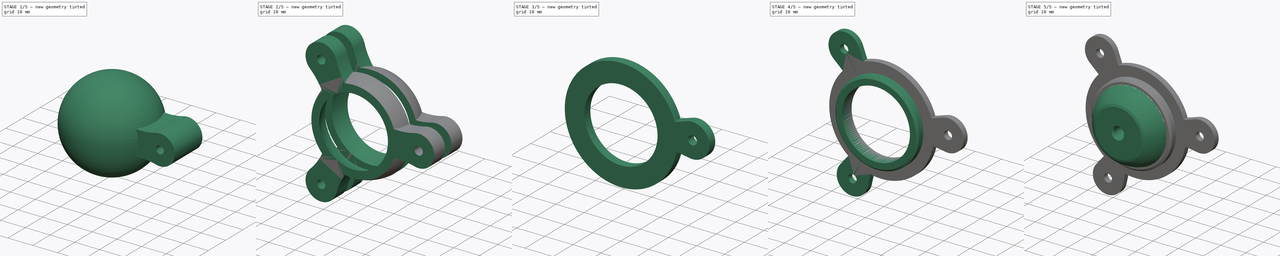
[diagram: build sequence overview — one tinted view per stage of 5, left to right]
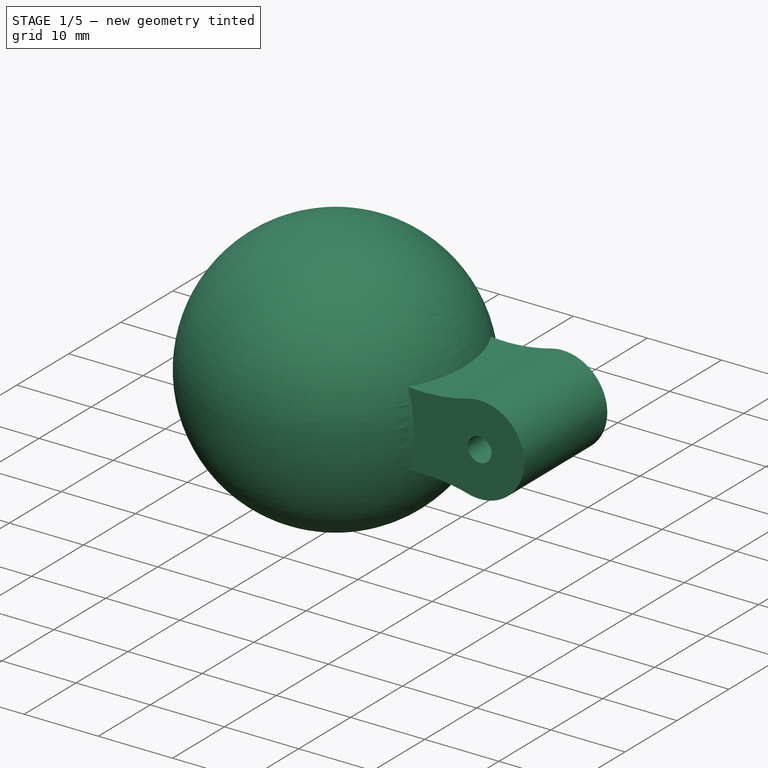
[diagram: stage 1 of 5 — iso view after this stage's code; geometry added in this stage tinted green]
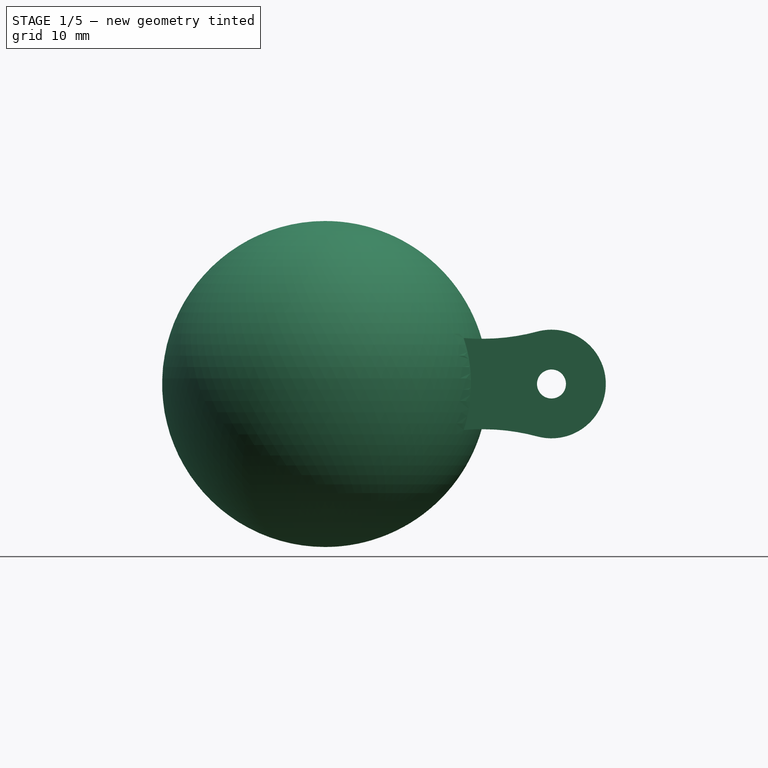
[diagram: stage 1 of 5 — front view after this stage's code; geometry added in this stage tinted green]
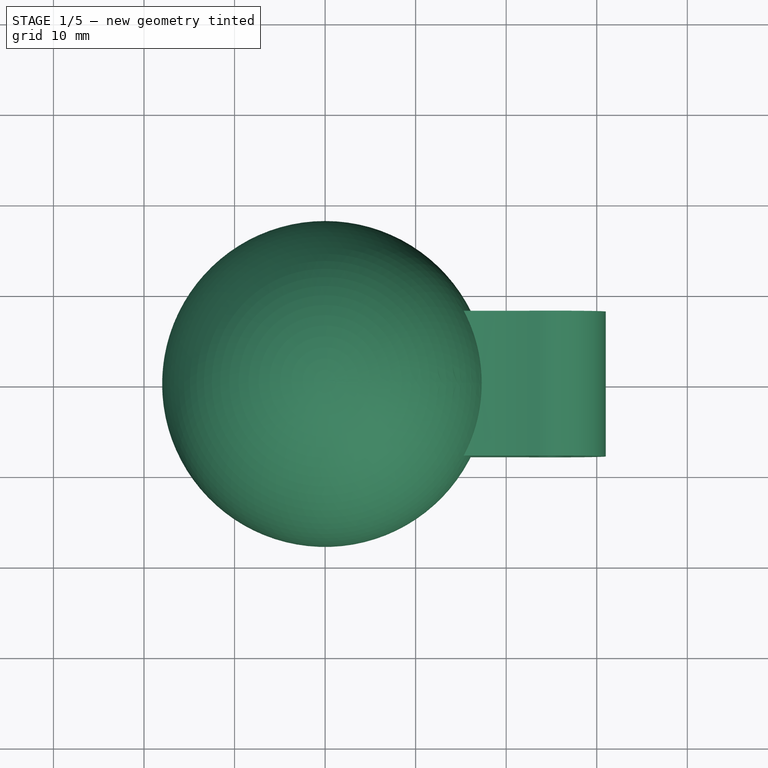
[diagram: stage 1 of 5 — top view after this stage's code; geometry added in this stage tinted green]
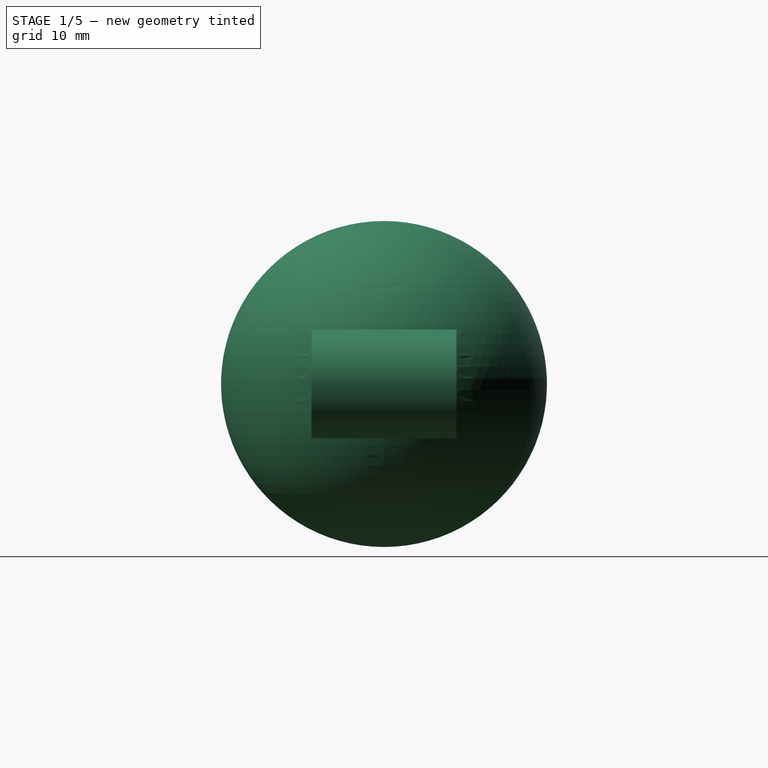
[diagram: stage 1 of 5 — right view after this stage's code; geometry added in this stage tinted green]
FCSTD DOCUMENT  (FreeCAD 1.0R39109 (Git))
Label: back panel sphere
License: All rights reserved
objects: Sketcher::SketchObject×6, PartDesign::Chamfer×4, PartDesign::Pocket×3, PartDesign::Pad×3, PartDesign::Body×3, PartDesign::AdditiveSphere×2, PartDesign::PolarPattern×2, PartDesign::SubShapeBinder×2, PartDesign::SubtractiveSphere×1, PartDesign::Hole×1
note: 63 computed .brp shape members not serialized (recipe doc carries the construction recipe); baked Part::Feature solids carry a one-line shape summary decoded from their .brp

FEATURE [PartDesign::AdditiveSphere] Sphere
  Angle1 = -90
  Angle2 = 90
  Angle3 = 360
  AttacherType = Attacher::AttachEngine3D
  AttachmentSupport = -> [XY_Plane]
  MapMode = 5
  Radius = 15
  Refine = true
  Suppressed = false
FEATURE [Sketcher::SketchObject] Sketch002
  ArcFitTolerance = 1e-06
  AttachmentSupport = -> [YZ_Plane001]
  FullyConstrained = true
  MakeInternals = false
  MapMode = 5
  Placement = pos=(0,0,0) rot=(0.57735,0.57735,0.57735;2.0944rad)
  sketch-geometry (12):
    g0: LineSegment StartX=7.75 StartY=40 StartZ=0 EndX=7.75 EndY=-40 EndZ=0
    g1: LineSegment StartX=7.75 StartY=-40 StartZ=0 EndX=22.75 EndY=-40 EndZ=0
    g2: LineSegment StartX=22.75 StartY=-40 StartZ=0 EndX=22.75 EndY=40 EndZ=0
    g3: LineSegment StartX=22.75 StartY=40 StartZ=0 EndX=7.75 EndY=40 EndZ=0
    g4: LineSegment StartX=-22.75 StartY=40 StartZ=0 EndX=-22.75 EndY=-40 EndZ=0
    g5: LineSegment StartX=-22.75 StartY=-40 StartZ=0 EndX=-7.75 EndY=-40 EndZ=0
    g6: LineSegment StartX=-7.75 StartY=-40 StartZ=0 EndX=-7.75 EndY=40 EndZ=0
    g7: LineSegment StartX=-7.75 StartY=40 StartZ=0 EndX=-22.75 EndY=40 EndZ=0
    g8: LineSegment StartX=-1.75 StartY=40 StartZ=0 EndX=-1.75 EndY=-40 EndZ=0
    g9: LineSegment StartX=-1.75 StartY=-40 StartZ=0 EndX=1.75 EndY=-40 EndZ=0
    g10: LineSegment StartX=1.75 StartY=-40 StartZ=0 EndX=1.75 EndY=40 EndZ=0
    g11: LineSegment StartX=1.75 StartY=40 StartZ=0 EndX=-1.75 EndY=40 EndZ=0
  constraints (33):
    c: Coincident(g0,g1)
    c: Coincident(g1,g2)
    c: Coincident(g2,g3)
    c: Coincident(g3,g0)
    c: Vertical(g0)
    c: Horizontal(g1)
    c: Horizontal(g3)
    c: Coincident(g4,g5)
    c: Coincident(g5,g6)
    c: Coincident(g6,g7)
    c: Coincident(g7,g4)
    c: Vertical(g4)
    c: Vertical(g6)
    c: Horizontal(g5)
    c: Horizontal(g7)
    c: Horizontal(g6,g0)
    c: Equal(g7,g3)
    c: Symmetric(g5,g0,g-2)
    c: DistanceX(g1,g1) = 15
    c: Symmetric(g1,g2,g-1)
    c: DistanceY(g2,g2) = 80
    c: Coincident(g8,g9)
    c: Coincident(g9,g10)
    c: Coincident(g10,g11)
    c: Coincident(g11,g8)
    c: Vertical(g8)
    c: Vertical(g10)
    c: Horizontal(g9)
    c: Horizontal(g10,g0)
    c: Equal(g10,g0)
    c: Symmetric(g8,g10,g-2)
    c: DistanceX(g11,g11) = 3.5
    c: Distance(g10,g0) = 6
FEATURE [Sketcher::SketchObject] Sketch003
  ArcFitTolerance = 1e-06
  AttachmentSupport = -> [XZ_Plane001]
  FullyConstrained = true
  MakeInternals = false
  MapMode = 5
  Placement = pos=(0,0,0) rot=(1,0,0;1.5708rad)
  sketch-geometry (7):
    g0: Circle CenterX=25 CenterY=0 CenterZ=0 NormalX=0 NormalY=0 NormalZ=1 AngleXU=0 Radius=1.6
    g1: ArcOfCircle CenterX=25 CenterY=0 CenterZ=0 NormalX=0 NormalY=0 NormalZ=1 AngleXU=0 Radius=6 StartAngle=4.45059 EndAngle=8.11578
    g2: ArcOfCircle CenterX=17.3211 CenterY=28.6579 CenterZ=0 NormalX=0 NormalY=0 NormalZ=1 AngleXU=0 Radius=23.6688 StartAngle=4.35315 EndAngle=4.97419
    g3: ArcOfCircle CenterX=17.3211 CenterY=-28.6579 CenterZ=0 NormalX=0 NormalY=0 NormalZ=1 AngleXU=0 Radius=23.6688 StartAngle=1.309 EndAngle=1.93004
    g4: LineSegment [constr] StartX=23.4471 StartY=5.79555 StartZ=0 EndX=25 EndY=0 EndZ=0
    g5: LineSegment [constr] StartX=25 StartY=0 StartZ=0 EndX=23.4471 EndY=-5.79555 EndZ=0
    g6: LineSegment StartX=9 StartY=6.5 StartZ=0 EndX=9 EndY=-6.5 EndZ=0
  constraints (18):
    c: PointOnObject(g0,g-1)
    c: Diameter(g0) = 3.2
    c: Coincident(g1,g0)
    c: Radius(g1) = 6
    c: Tangent(g3,g1) = 1.5708
    c: Tangent(g2,g1) = 1.5708
    c: Coincident(g4,g1)
    c: Coincident(g4,g0)
    c: Coincident(g5,g0)
    c: Coincident(g5,g1)
    c: Vertical(g1,g1)
    c: Angle(g4,g5) = 2.61799
    c: Distance(g0,g-1) = 25
    c: Symmetric(g3,g2,g-1)
    c: DistanceX(g-1,g2) = 9
    c: DistanceY(g3,g2) = 13
    c: Coincident(g6,g2)
    c: Coincident(g6,g3)
FEATURE [PartDesign::AdditiveSphere] Sphere001
  Angle1 = -90
  Angle2 = 90
  Angle3 = 360
  AttacherType = Attacher::AttachEngine3D
  AttachmentSupport = -> [XY_Plane001,Origin001]
  Radius = 18
  Refine = true
  Suppressed = false
  expr: Radius = <<Sphere>>.Radius + 3 mm
FEATURE [PartDesign::Pad] Pad
  BaseFeature = -> Sphere001
  Direction = (0,-1,2e-16)
  Length = 16
  Length2 = 10
  Midplane = true
  Profile = -> Sketch003
  ReferenceAxis = -> Sketch003 [N_Axis]
  Refine = true
  Suppressed = false
  Type = 0
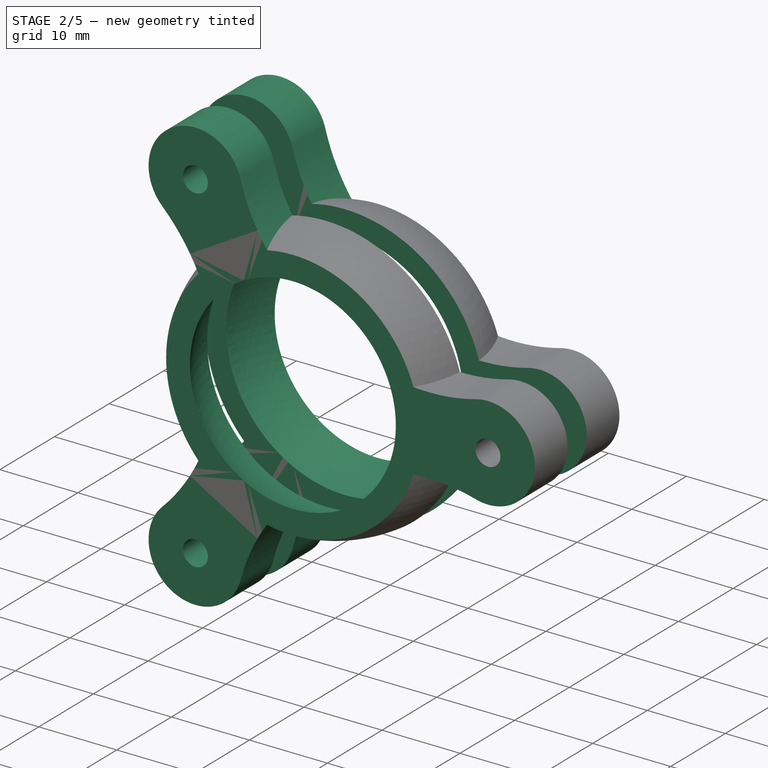
[diagram: stage 2 of 5 — iso view after this stage's code; geometry added in this stage tinted green]
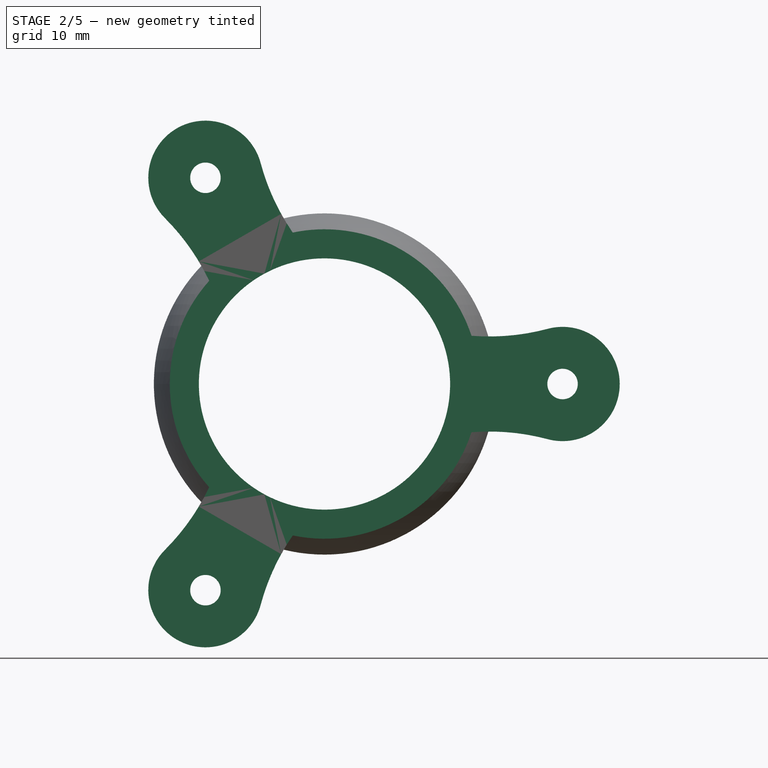
[diagram: stage 2 of 5 — front view after this stage's code; geometry added in this stage tinted green]
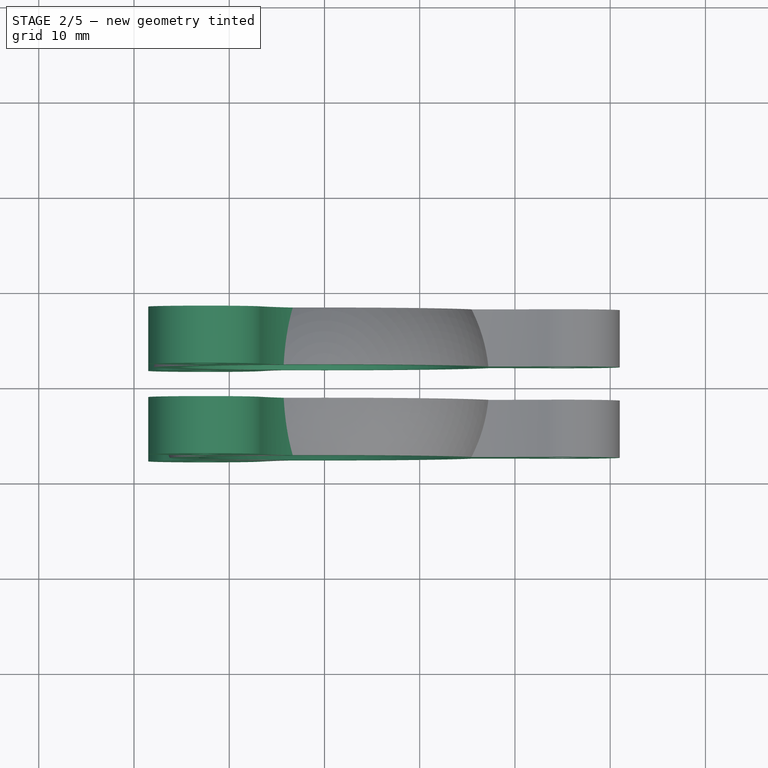
[diagram: stage 2 of 5 — top view after this stage's code; geometry added in this stage tinted green]
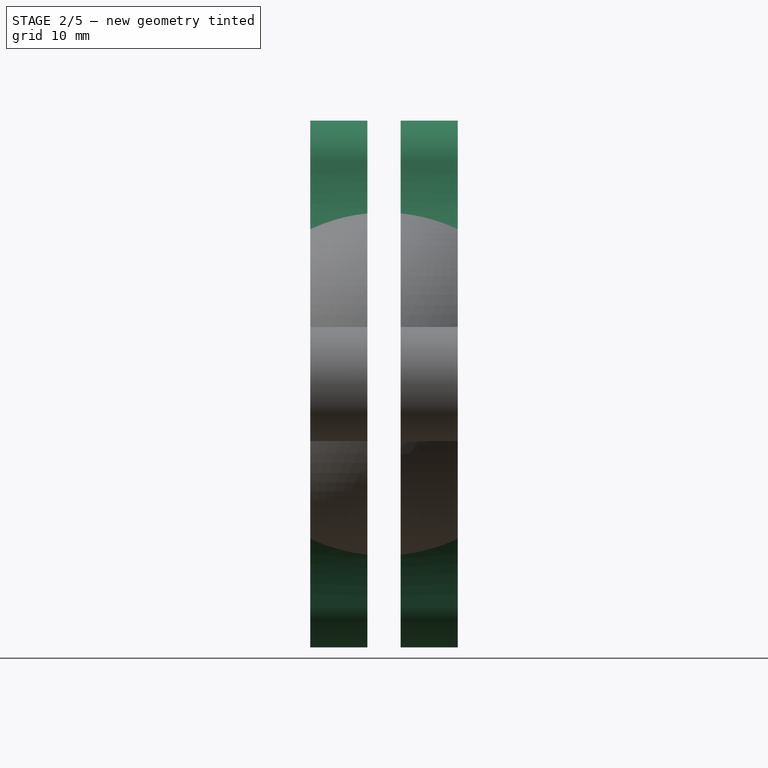
[diagram: stage 2 of 5 — right view after this stage's code; geometry added in this stage tinted green]
FEATURE [PartDesign::PolarPattern] PolarPattern
  Angle = 360
  Axis = -> Sketch003 [N_Axis]
  BaseFeature = -> Pad
  Mode = 0
  Occurrences = 3
  Offset = 120
  Originals = -> [Pad]
  Refine = true
  Suppressed = false
  TransformMode = 0
FEATURE [PartDesign::Pocket] Pocket002
  BaseFeature = -> PolarPattern
  Direction = (-1,0,0)
  Length = 5
  Length2 = 5
  Midplane = true
  Profile = -> Sketch002
  ReferenceAxis = -> Sketch002 [N_Axis]
  Refine = true
  Suppressed = false
  Type = 1
FEATURE [PartDesign::SubtractiveSphere] Sphere002
  Angle1 = -90
  Angle2 = 90
  Angle3 = 360
  AttacherType = Attacher::AttachEngine3D
  AttachmentSupport = -> [XY_Plane001]
  BaseFeature = -> Pocket002
  MapMode = 5
  Radius = 15.3
  Refine = true
  Suppressed = false
  expr: Radius = <<Sphere>>.Radius + 0.3 mm
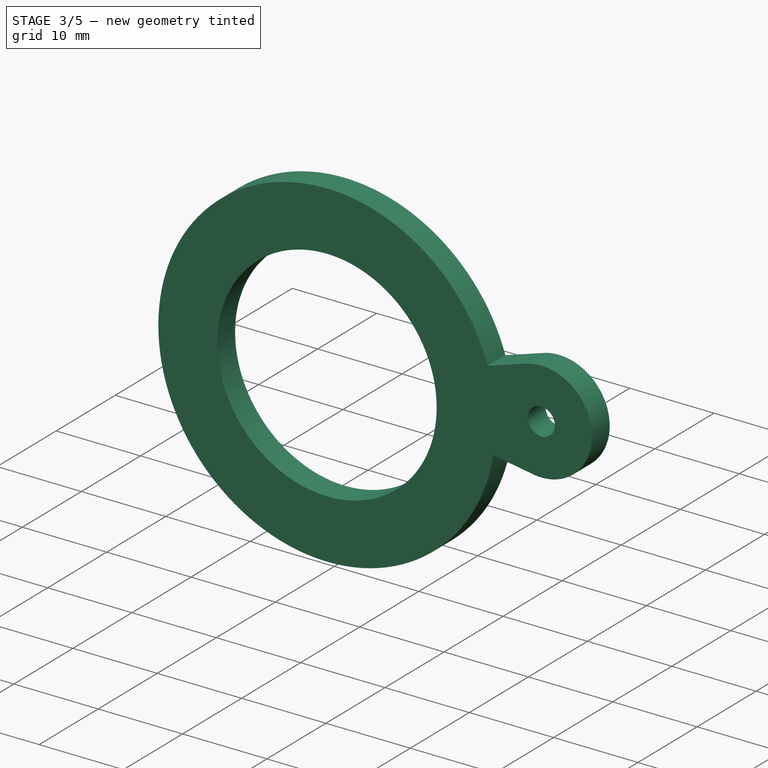
[diagram: stage 3 of 5 — iso view after this stage's code; geometry added in this stage tinted green]
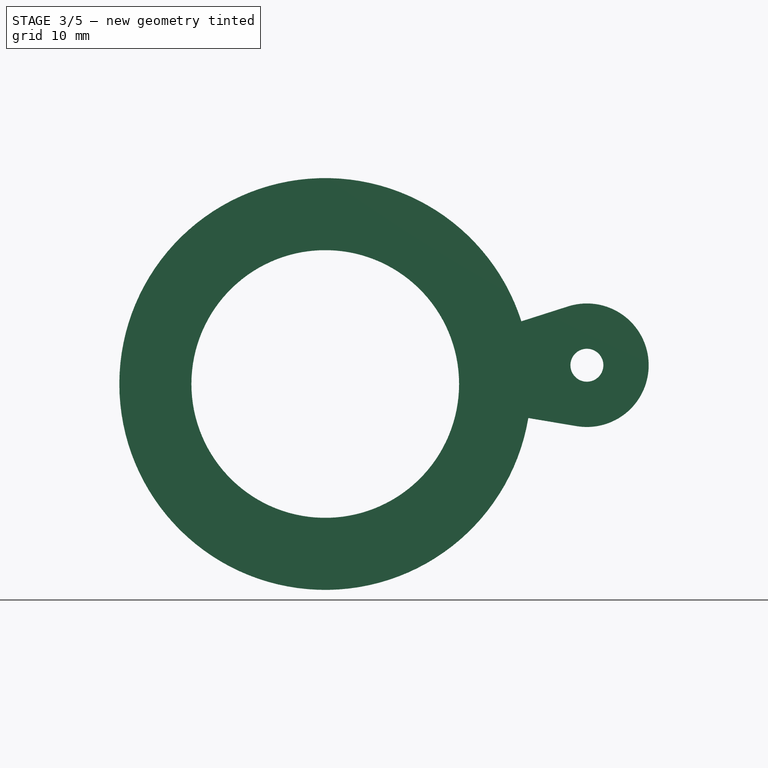
[diagram: stage 3 of 5 — front view after this stage's code; geometry added in this stage tinted green]
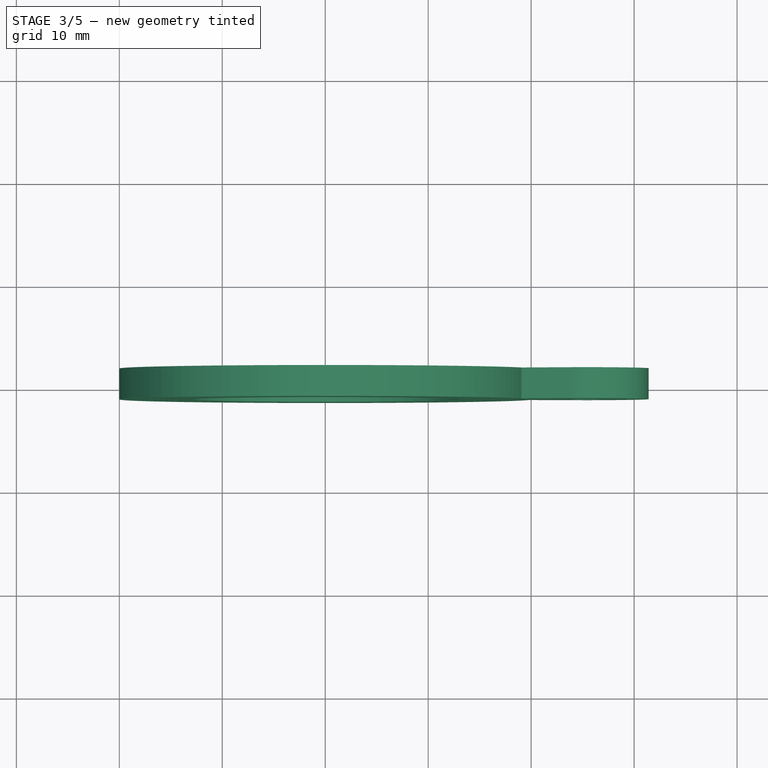
[diagram: stage 3 of 5 — top view after this stage's code; geometry added in this stage tinted green]
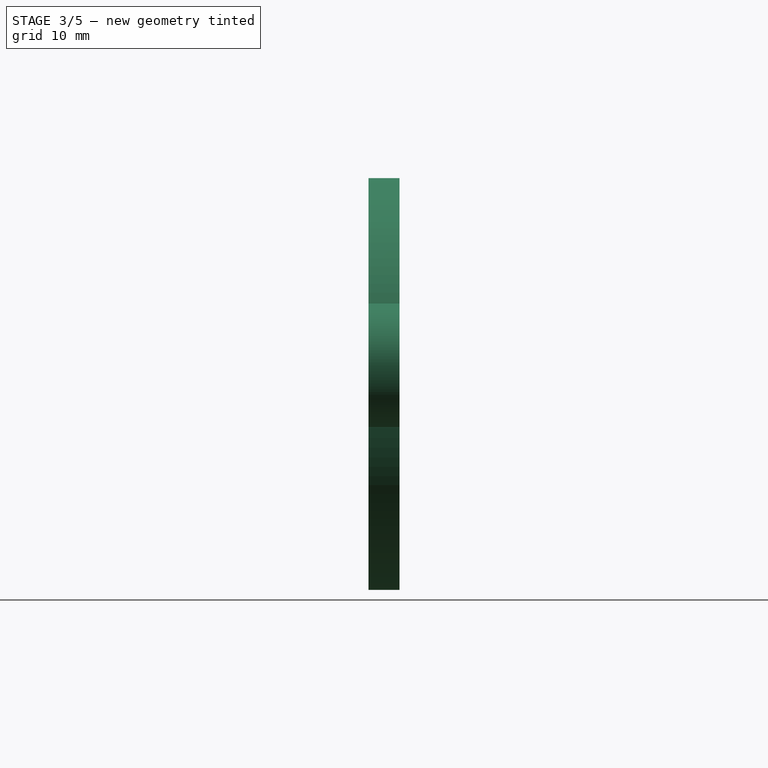
[diagram: stage 3 of 5 — right view after this stage's code; geometry added in this stage tinted green]
FEATURE [PartDesign::Hole] Hole
  BaseFeature = -> Sphere002
  CustomThreadClearance = 0
  Depth = 5.2
  DepthType = 0
  Diameter = 4.5
  DrillForDepth = false
  DrillPoint = 0
  DrillPointAngle = 118
  HoleCutCountersinkAngle = 90
  HoleCutCustomValues = false
  HoleCutDepth = 0
  HoleCutDiameter = 6.1
  HoleCutType = 0
  ModelThread = false
  Profile = -> Sphere002 [Edge71,Edge69,Edge68]
  Refine = true
  Suppressed = false
  Tapered = false
  TaperedAngle = 90
  ThreadClass = 0
  ThreadDepth = 5.2
  ThreadDepthType = 0
  ThreadDirection = 0
  ThreadFit = 0
  ThreadSize = 0
  ThreadType = 0
  Threaded = false
  UseCustomThreadClearance = false
FEATURE [PartDesign::Chamfer] Chamfer
  Angle = 45
  Base = -> Hole [Edge61,Edge51,Edge58,Edge62,Edge64,Edge65,Edge5,Edge31,Edge27,Edge28,Edge32,Edge34]
  BaseFeature = -> Hole
  ChamferType = 0
  FlipDirection = false
  Refine = true
  Size = 0.75
  Size2 = 1
  SupportTransform = false
  Suppressed = false
  UseAllEdges = false
FEATURE [PartDesign::Chamfer] Chamfer001
  Angle = 45
  Base = -> Chamfer [Edge134,Edge135,Edge132,Edge133,Edge46,Edge48,Edge45,Edge47,Edge113,Edge26,Edge114,Edge111,Edge112,Edge24,Edge25,Edge87,Edge27]
  BaseFeature = -> Chamfer
  ChamferType = 0
  FlipDirection = false
  Refine = true
  Size = 0.5
  Size2 = 1
  SupportTransform = false
  Suppressed = false
  UseAllEdges = false
FEATURE [PartDesign::Body] Body  label="sphere"
  AllowCompound = true
  Group = -> [Sphere,Sketch,Pocket,Sketch001,Pocket001,Chamfer002]
  Origin = -> Origin
  Tip = -> Chamfer002
FEATURE [PartDesign::SubShapeBinder] Binder
  BindCopyOnChange = 0
  BindMode = 0
  ClaimChildren = false
  Context = -> Body002 [Binder.]
  Fuse = false
  MakeFace = true
  OffsetFill = false
  OffsetIntersection = false
  OffsetJoinType = 0
  OffsetOpenResult = false
  PartialLoad = false
  Refine = true
  Relative = true
  _Version = 2
FEATURE [PartDesign::SubShapeBinder] Binder001
  BindCopyOnChange = 0
  BindMode = 0
  ClaimChildren = false
  Context = -> Body002 [Binder001.]
  Fuse = false
  MakeFace = true
  OffsetFill = false
  OffsetIntersection = false
  OffsetJoinType = 0
  OffsetOpenResult = false
  PartialLoad = false
  Refine = true
  Relative = true
  Support = -> [Body001[Chamfer001.Face39]]
  _Version = 2
FEATURE [Sketcher::SketchObject] Sketch004
  ArcFitTolerance = 1e-06
  AttachmentSupport = -> [Binder001]
  ExternalGeometry = -> [Binder001]
  FullyConstrained = false
  MakeInternals = false
  MapMode = 5
  Placement = pos=(0,1.75,0) rot=(1,0,0;1.5708rad)
  sketch-geometry (6):
    g0: ArcOfCircle CenterX=0 CenterY=0 CenterZ=0 NormalX=0 NormalY=0 NormalZ=1 AngleXU=0 Radius=20 StartAngle=0.309314 EndAngle=6.11707
    g1: ArcOfCircle CenterX=25.4142 CenterY=1.82272 CenterZ=0 NormalX=0 NormalY=0 NormalZ=1 AngleXU=0 Radius=6 StartAngle=4.54627 EndAngle=8.1633
    g2: LineSegment StartX=23.5878 StartY=7.53797 StartZ=0 EndX=19.0509 EndY=6.0881 EndZ=0
    g3: LineSegment StartX=24.4221 StartY=-4.09469 StartZ=0 EndX=19.7247 EndY=-3.30711 EndZ=0
    g4: Circle CenterX=0 CenterY=0 CenterZ=0 NormalX=0 NormalY=0 NormalZ=1 AngleXU=0 Radius=13
    g5: Circle CenterX=25.4142 CenterY=1.82272 CenterZ=0 NormalX=0 NormalY=0 NormalZ=1 AngleXU=0 Radius=1.6
  constraints (13):
    c: Diameter(g0) = 40
    c: Coincident(g0,g3)
    c: Coincident(g0,g2)
    c: Perpendicular(g0,g2)
    c: Perpendicular(g0,g3)
    c: Tangent(g2,g1) = -1.5708
    c: Tangent(g3,g1) = 1.5708
    c: Coincident(g4,g0)
    c: Diameter(g4) = 26
    c: Coincident(g5,g1)
    c: Diameter(g5) = 3.2
    c: Radius(g1) = 6
    c: Coincident(g0,g-1)
FEATURE [PartDesign::Pad] Pad001
  Direction = (0,-1,2e-16)
  Length = 3
  Length2 = 10
  Profile = -> Sketch004
  ReferenceAxis = -> Sketch004 [N_Axis]
  Refine = true
  Suppressed = false
  Type = 0
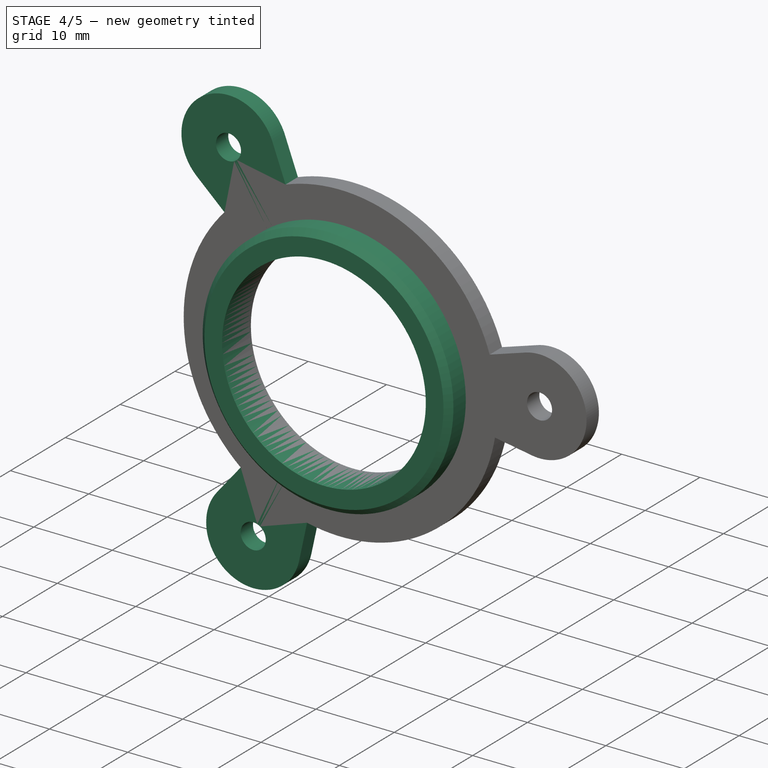
[diagram: stage 4 of 5 — iso view after this stage's code; geometry added in this stage tinted green]
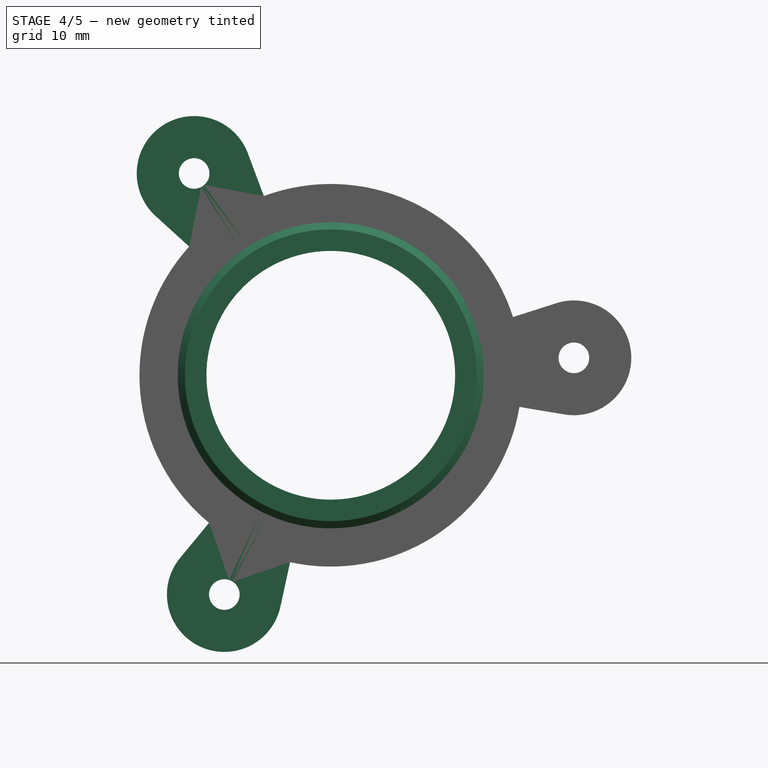
[diagram: stage 4 of 5 — front view after this stage's code; geometry added in this stage tinted green]
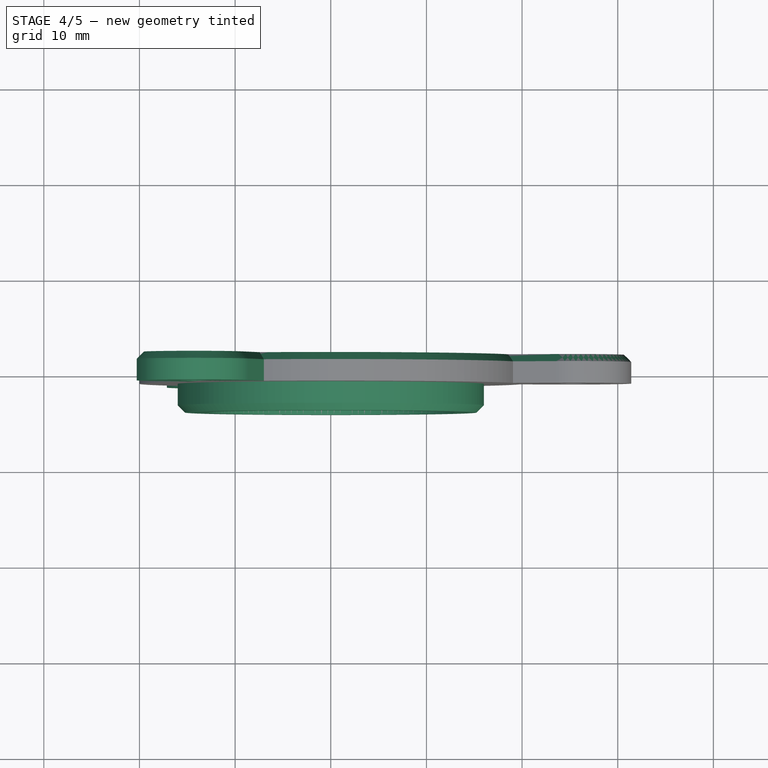
[diagram: stage 4 of 5 — top view after this stage's code; geometry added in this stage tinted green]
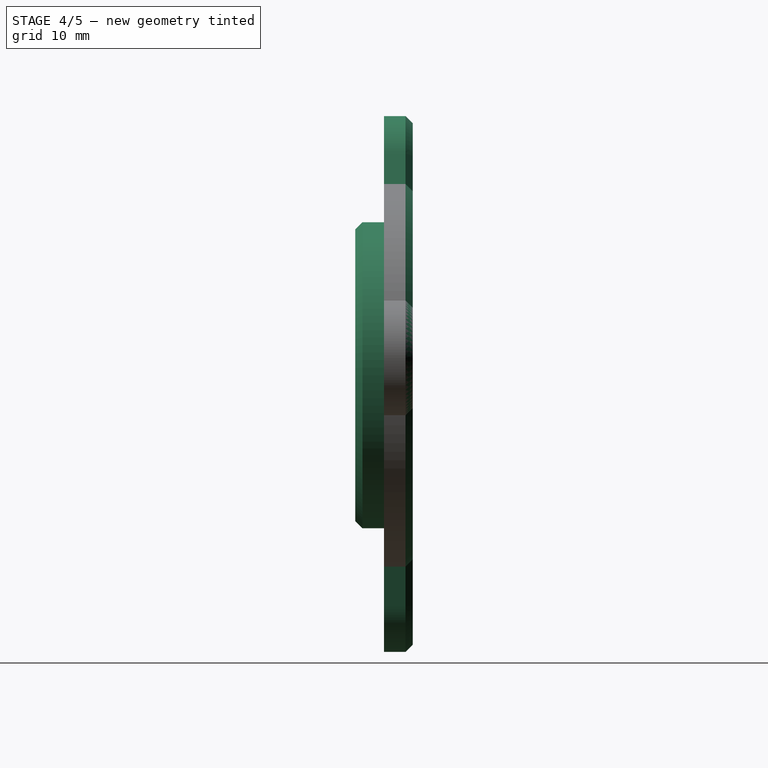
[diagram: stage 4 of 5 — right view after this stage's code; geometry added in this stage tinted green]
FEATURE [PartDesign::PolarPattern] PolarPattern001
  Angle = 360
  Axis = -> Sketch004 [N_Axis]
  BaseFeature = -> Pad001
  Mode = 0
  Occurrences = 3
  Offset = 120
  Originals = -> [Pad001]
  Refine = true
  Suppressed = false
  TransformMode = 0
FEATURE [Sketcher::SketchObject] Sketch005
  ArcFitTolerance = 1e-06
  AttachmentSupport = -> [PolarPattern001]
  ExternalGeometry = -> [Sketch004]
  FullyConstrained = true
  MakeInternals = false
  MapMode = 5
  Placement = pos=(0,-1.25,3e-16) rot=(1,0,0;1.5708rad)
  sketch-geometry (2):
    g0: Circle CenterX=0 CenterY=0 CenterZ=0 NormalX=0 NormalY=0 NormalZ=1 AngleXU=0 Radius=13
    g1: Circle CenterX=0 CenterY=0 CenterZ=0 NormalX=0 NormalY=0 NormalZ=1 AngleXU=0 Radius=16
  constraints (4):
    c: Coincident(g0,g-1)
    c: Coincident(g1,g0)
    c: Diameter(g1) = 32
    c: Equal(g0,g-3)
FEATURE [PartDesign::Pad] Pad002
  BaseFeature = -> PolarPattern001
  Direction = (0,-1,2e-16)
  Length = 3
  Length2 = 10
  Profile = -> Sketch005
  ReferenceAxis = -> Sketch005 [N_Axis]
  Refine = true
  Suppressed = false
  Type = 0
FEATURE [PartDesign::Chamfer] Chamfer003
  Angle = 45
  Base = -> Pad002 [Edge51,Face4]
  BaseFeature = -> Pad002
  ChamferType = 0
  FlipDirection = false
  Refine = true
  Size = 0.75
  Size2 = 1
  SupportTransform = false
  Suppressed = false
  UseAllEdges = false
FEATURE [PartDesign::Body] Body002  label="drilling template"
  AllowCompound = true
  Group = -> [Binder,Binder001,Sketch004,Pad001,PolarPattern001,Sketch005,Pad002,Chamfer003]
  Origin = -> Origin002
  Tip = -> Chamfer003
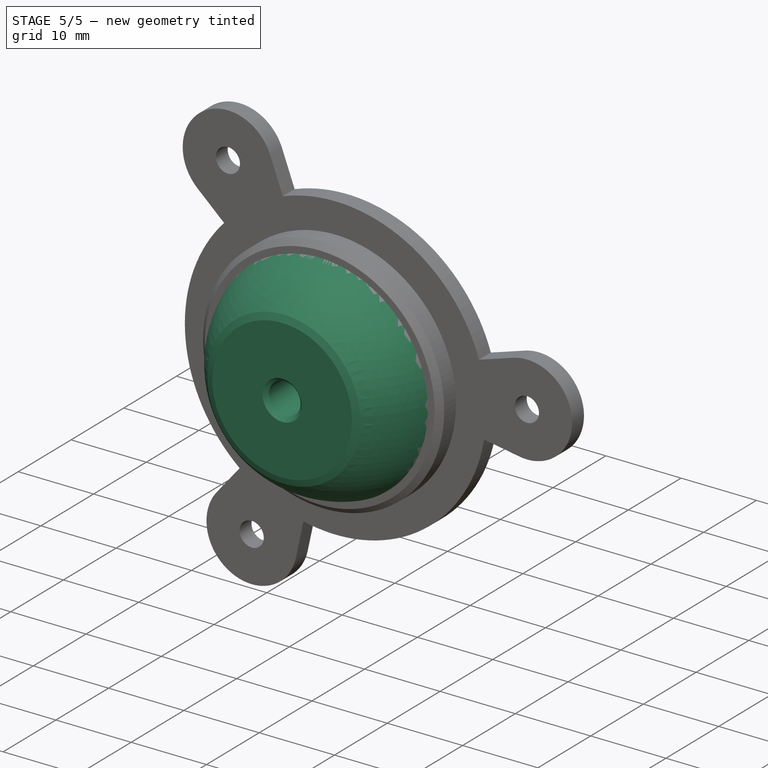
[diagram: stage 5 of 5 — iso view after this stage's code; geometry added in this stage tinted green]
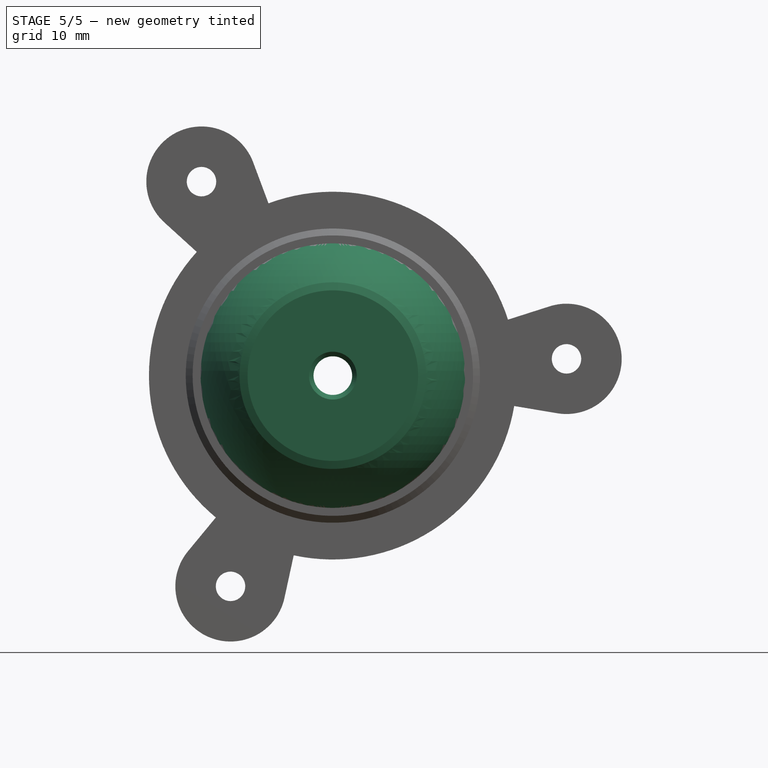
[diagram: stage 5 of 5 — front view after this stage's code; geometry added in this stage tinted green]
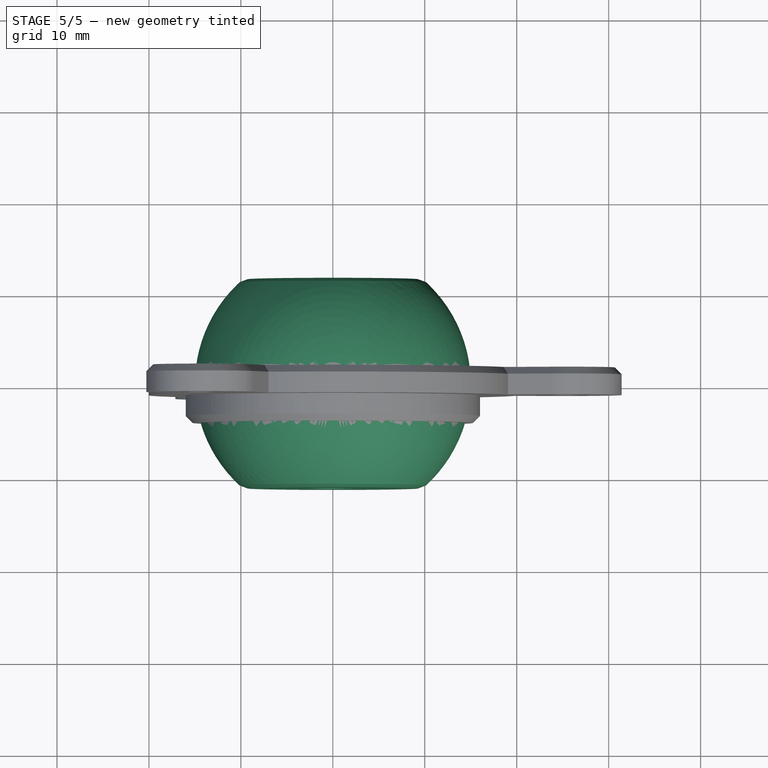
[diagram: stage 5 of 5 — top view after this stage's code; geometry added in this stage tinted green]
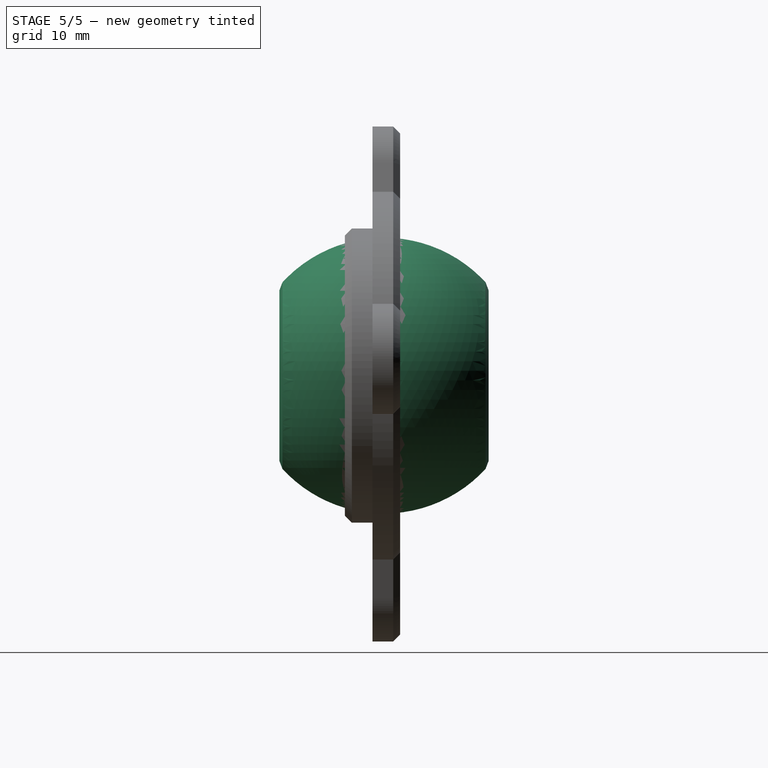
[diagram: stage 5 of 5 — right view after this stage's code; geometry added in this stage tinted green]
FEATURE [Sketcher::SketchObject] Sketch
  ArcFitTolerance = 1e-06
  AttachmentSupport = -> [XZ_Plane]
  FullyConstrained = true
  MakeInternals = false
  MapMode = 5
  Placement = pos=(0,0,0) rot=(1,0,0;1.5708rad)
  sketch-geometry (1):
    g0: Circle CenterX=0 CenterY=0 CenterZ=0 NormalX=0 NormalY=0 NormalZ=1 AngleXU=0 Radius=2.1
  constraints (2):
    c: Diameter(g0) = 4.2
    c: Coincident(g0,g-1)
FEATURE [PartDesign::Pocket] Pocket
  BaseFeature = -> Sphere
  Direction = (0,1,-2e-16)
  Length = 5
  Length2 = 5
  Midplane = true
  Profile = -> Sketch
  ReferenceAxis = -> Sketch [N_Axis]
  Refine = true
  Suppressed = false
  Type = 1
FEATURE [Sketcher::SketchObject] Sketch001
  ArcFitTolerance = 1e-06
  AttachmentSupport = -> [YZ_Plane]
  ExternalGeometry = -> [Pocket]
  FullyConstrained = true
  MakeInternals = false
  MapMode = 5
  Placement = pos=(0,0,0) rot=(0.57735,0.57735,0.57735;2.0944rad)
  sketch-geometry (11):
    g0: LineSegment StartX=11.3775 StartY=20 StartZ=0 EndX=11.3775 EndY=-20 EndZ=0
    g1: LineSegment StartX=11.3775 StartY=-20 StartZ=0 EndX=31.3775 EndY=-20 EndZ=0
    g2: LineSegment StartX=31.3775 StartY=-20 StartZ=0 EndX=31.3775 EndY=20 EndZ=0
    g3: LineSegment StartX=31.3775 StartY=20 StartZ=0 EndX=11.3775 EndY=20 EndZ=0
    g4: LineSegment StartX=-31.3775 StartY=20 StartZ=0 EndX=-31.3775 EndY=-20 EndZ=0
    g5: LineSegment StartX=-31.3775 StartY=-20 StartZ=0 EndX=-11.3775 EndY=-20 EndZ=0
    g6: LineSegment StartX=-11.3775 StartY=-20 StartZ=0 EndX=-11.3775 EndY=20 EndZ=0
    g7: LineSegment StartX=-11.3775 StartY=20 StartZ=0 EndX=-31.3775 EndY=20 EndZ=0
    g8: Circle [constr] CenterX=0 CenterY=0 CenterZ=0 NormalX=0 NormalY=0 NormalZ=1 AngleXU=0 Radius=14.8523
    g9: LineSegment [constr] StartX=0 StartY=23.106 StartZ=0 EndX=19.3883 EndY=0 EndZ=0
    g10: GeomPoint [constr] X=11.3775 Y=9.54688 Z=0
  constraints (30):
    c: Coincident(g0,g1)
    c: Coincident(g1,g2)
    c: Coincident(g2,g3)
    c: Coincident(g3,g0)
    c: Vertical(g2)
    c: Horizontal(g1)
    c: Horizontal(g3)
    c: Coincident(g4,g5)
    c: Coincident(g5,g6)
    c: Coincident(g6,g7)
    c: Coincident(g7,g4)
    c: Vertical(g4)
    c: Vertical(g6)
    c: Horizontal(g5)
    c: Horizontal(g7)
    c: Symmetric(g5,g0,g-2)
    c: Horizontal(g6,g0)
    c: Equal(g7,g3)
    c: DistanceX(g3,g3) = 20
    c: Coincident(g8,g-1)
    c: PointOnObject(g-3,g8)
    c: PointOnObject(g9,g-2)
    c: PointOnObject(g9,g-1)
    c: Tangent(g9,g8)
    c: Angle(g9) = -0.872665
    c: PointOnObject(g10,g0)
    c: PointOnObject(g10,g9)
    c: DistanceY(g2,g2) = 40
    c: Symmetric(g0,g0,g-1)
    c: PointOnObject(g10,g8)
FEATURE [PartDesign::Pocket] Pocket001
  BaseFeature = -> Pocket
  Direction = (-1,0,0)
  Length = 5
  Length2 = 5
  Midplane = true
  Profile = -> Sketch001
  ReferenceAxis = -> Sketch001 [N_Axis]
  Refine = true
  Suppressed = false
  Type = 1
FEATURE [PartDesign::Body] Body001  label="mount"
  AllowCompound = true
  Group = -> [Sketch002,Sketch003,Sphere001,Pad,PolarPattern,Pocket002,Sphere002,Hole,Chamfer,Chamfer001]
  Origin = -> Origin001
  Tip = -> Chamfer001
FEATURE [PartDesign::Chamfer] Chamfer002
  Angle = 45
  Base = -> Pocket001 [Edge6,Edge7,Edge5,Edge4]
  BaseFeature = -> Pocket001
  ChamferType = 0
  FlipDirection = false
  Refine = true
  Size = 0.5
  Size2 = 1
  SupportTransform = false
  Suppressed = false
  UseAllEdges = false
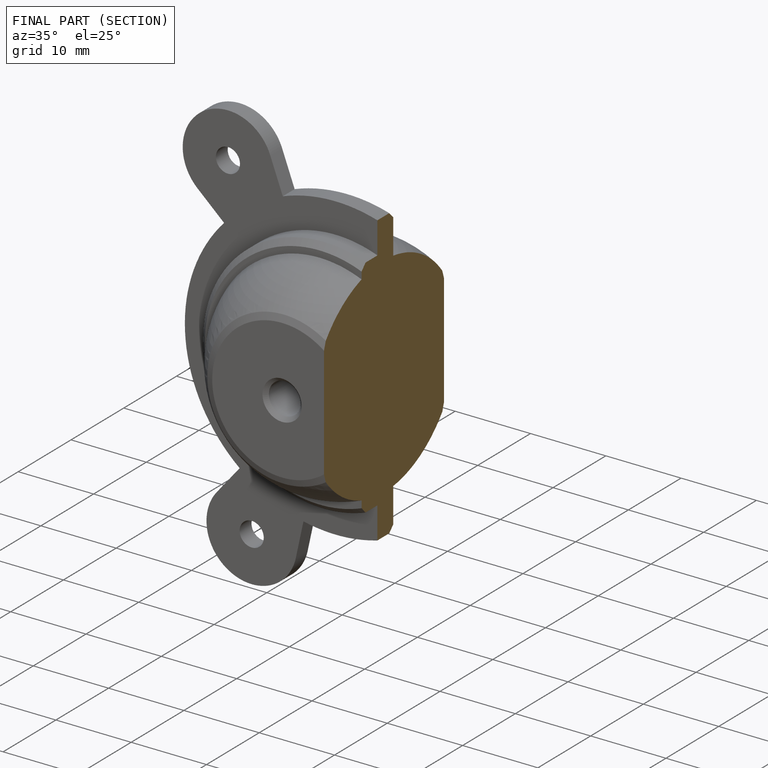
[diagram: finished part — half-section view (interior)]
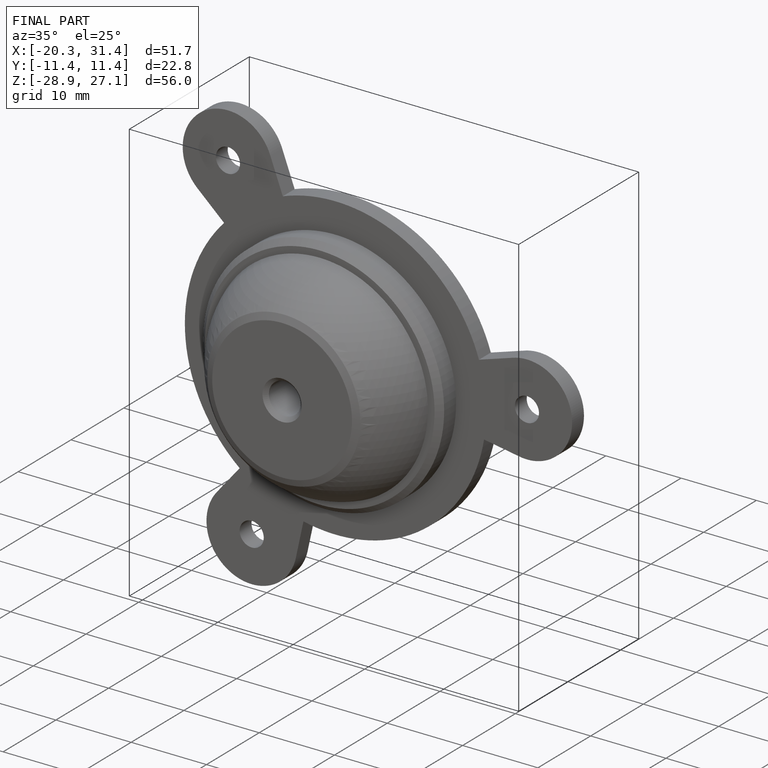
[diagram: finished part — iso view with bounding-box wireframe]
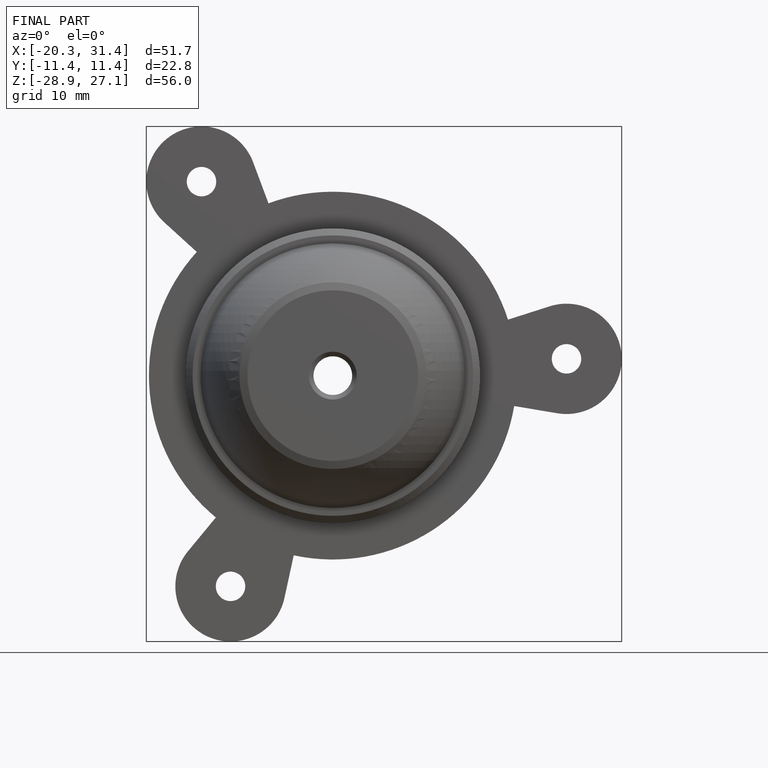
[diagram: finished part — front view with bounding-box wireframe]
